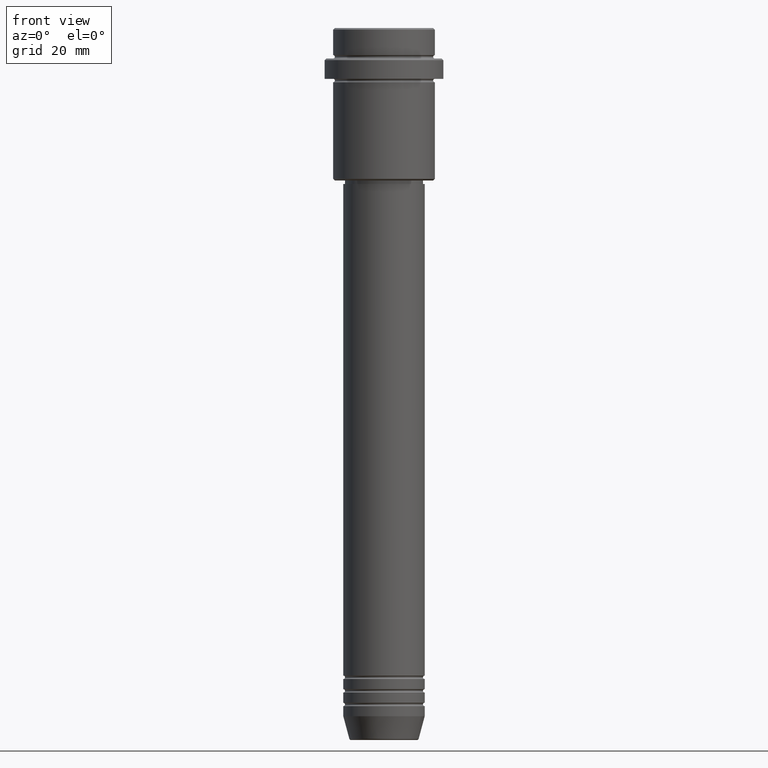
[diagram: clean part render]
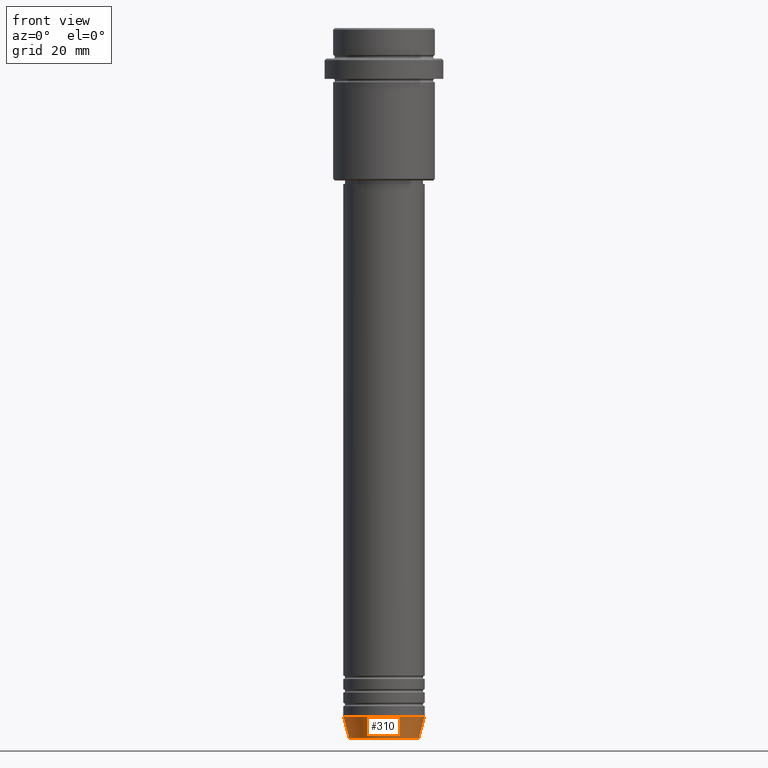
[diagram: same view with one face highlighted and labeled with its STEP entity id]
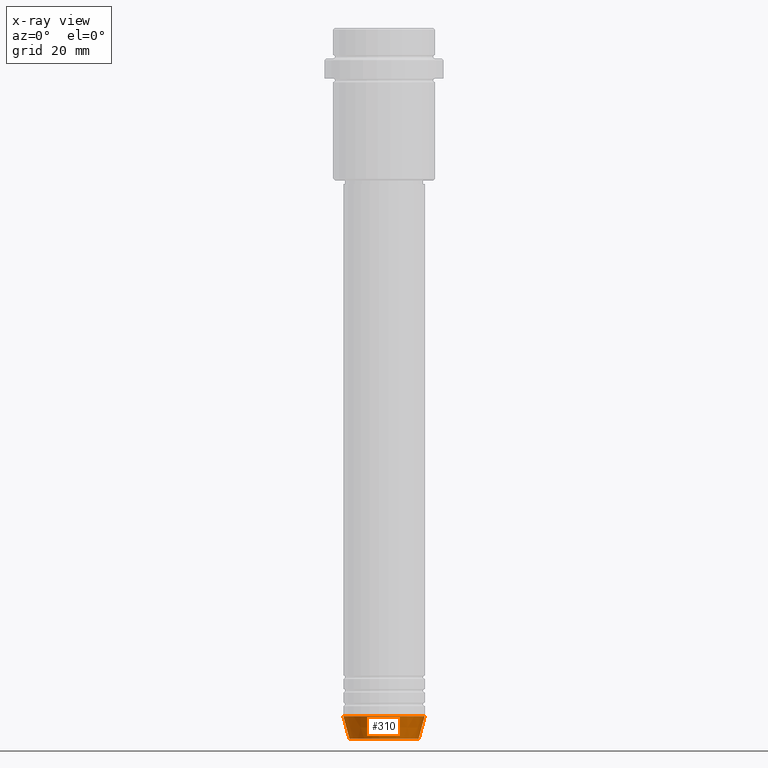
[diagram: x-ray of the same camera — body ghosted, the highlighted face saturated]
A machine part, front view. The second image highlights one B-rep face of the part: STEP entity #310.
The next image is the same camera in x-ray: the body ghosted, the highlighted face saturated — about 0% of this face is hidden behind the body in this view.
In plain terms, the highlighted conical surface has half-angle 15 deg.
Its self-contained STEP definition (entity closure, byte-faithful):
#43 = CARTESIAN_POINT ( 'NONE',  ( 0.000000000000000000, 0.000000000000000000, -209.6294095225512706 ) ) ;
#99 = CIRCLE ( 'NONE', #904, 12.00000000000000000 ) ;
#107 = CARTESIAN_POINT ( 'NONE',  ( 12.00000000000000000, 0.000000000000000000, -203.0000000000000000 ) ) ;
#162 = DIRECTION ( 'NONE',  ( -0.000000000000000000, -0.000000000000000000, 1.000000000000000000 ) ) ;
#293 = EDGE_CURVE ( 'NONE', #1209, #807, #99, .T. ) ;
#310 = ADVANCED_FACE ( 'NONE', ( #825 ), #1385, .T. ) ;
#339 = DIRECTION ( 'NONE',  ( 1.000000000000000000, 0.000000000000000000, 0.000000000000000000 ) ) ;
#349 = CIRCLE ( 'NONE', #370, 10.22365507213719127 ) ;
#370 = AXIS2_PLACEMENT_3D ( 'NONE', #43, #485, #339 ) ;
#383 = CARTESIAN_POINT ( 'NONE',  ( -12.00000000000000000, 1.469576158976823947E-15, -203.0000000000000000 ) ) ;
#485 = DIRECTION ( 'NONE',  ( -0.000000000000000000, -0.000000000000000000, 1.000000000000000000 ) ) ;
#501 = ORIENTED_EDGE ( 'NONE', *, *, #293, .F. ) ;
#543 = DIRECTION ( 'NONE',  ( 0.2588190451025213501, 0.000000000000000000, 0.9659258262890680902 ) ) ;
#562 = EDGE_CURVE ( 'NONE', #1393, #1209, #1391, .T. ) ;
#568 = EDGE_CURVE ( 'NONE', #1393, #659, #349, .T. ) ;
#581 = EDGE_CURVE ( 'NONE', #659, #807, #1327, .T. ) ;
#587 = DIRECTION ( 'NONE',  ( -0.2588190451025213501, 3.169619151431772337E-17, 0.9659258262890680902 ) ) ;
#611 = CARTESIAN_POINT ( 'NONE',  ( 0.000000000000000000, 0.000000000000000000, -203.0000000000000000 ) ) ;
#659 = VERTEX_POINT ( 'NONE', #684 ) ;
#677 = ORIENTED_EDGE ( 'NONE', *, *, #562, .F. ) ;
#684 = CARTESIAN_POINT ( 'NONE',  ( 10.22365507213719127, 0.000000000000000000, -209.6294095225512706 ) ) ;
#697 = DIRECTION ( 'NONE',  ( -0.000000000000000000, -0.000000000000000000, 1.000000000000000000 ) ) ;
#807 = VERTEX_POINT ( 'NONE', #1232 ) ;
#825 = FACE_OUTER_BOUND ( 'NONE', #1197, .T. ) ;
#904 = AXIS2_PLACEMENT_3D ( 'NONE', #611, #697, #1228 ) ;
#906 = VECTOR ( 'NONE', #587, 1000.000000000000000 ) ;
#913 = ORIENTED_EDGE ( 'NONE', *, *, #568, .T. ) ;
#930 = VECTOR ( 'NONE', #543, 1000.000000000000000 ) ;
#939 = ORIENTED_EDGE ( 'NONE', *, *, #581, .T. ) ;
#953 = CARTESIAN_POINT ( 'NONE',  ( -10.22365507213719127, 1.360806402472382744E-15, -209.6294095225512706 ) ) ;
#1197 = EDGE_LOOP ( 'NONE', ( #677, #913, #939, #501 ) ) ;
#1209 = VERTEX_POINT ( 'NONE', #383 ) ;
#1228 = DIRECTION ( 'NONE',  ( 1.000000000000000000, 0.000000000000000000, 0.000000000000000000 ) ) ;
#1232 = CARTESIAN_POINT ( 'NONE',  ( 12.00000000000000000, 0.000000000000000000, -203.0000000000000000 ) ) ;
#1256 = CARTESIAN_POINT ( 'NONE',  ( 0.000000000000000000, 0.000000000000000000, -203.0000000000000000 ) ) ;
#1273 = CARTESIAN_POINT ( 'NONE',  ( -12.00000000000000000, 1.469576158976823947E-15, -203.0000000000000000 ) ) ;
#1327 = LINE ( 'NONE', #107, #930 ) ;
#1335 = AXIS2_PLACEMENT_3D ( 'NONE', #1256, #162, #1349 ) ;
#1349 = DIRECTION ( 'NONE',  ( 1.000000000000000000, 0.000000000000000000, 0.000000000000000000 ) ) ;
#1385 = CONICAL_SURFACE ( 'NONE', #1335, 12.00000000000000000, 0.2617993877991500740 ) ;
#1391 = LINE ( 'NONE', #1273, #906 ) ;
#1393 = VERTEX_POINT ( 'NONE', #953 ) ;